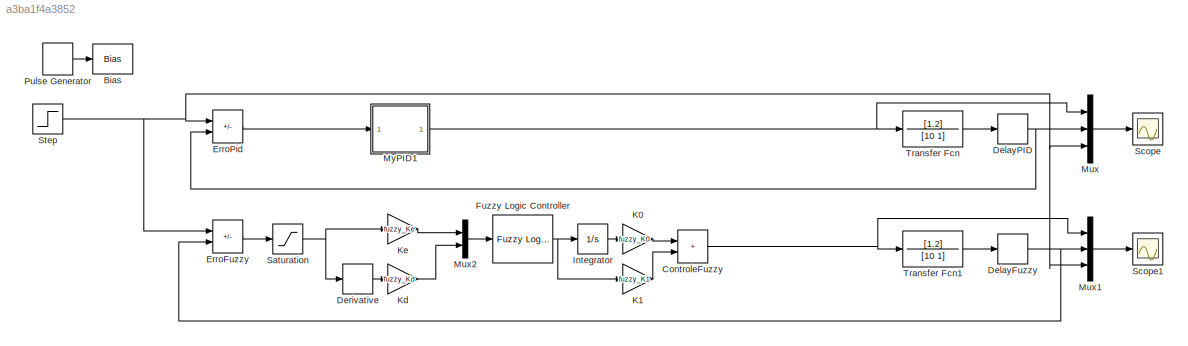
MODEL slx_a3ba1f4a3852
KIND model
CONFIG AbsTol = auto
CONFIG EnableMultiTasking = on
CONFIG FixedStep = auto
CONFIG MaxStep = auto
CONFIG MinStep = auto
CONFIG RelTol = 1e-3
CONFIG SampleTimeConstraint = Unconstrained
CONFIG Solver = ode23tb
CONFIG SolverName = ode23tb
CONFIG StartTime = 0.0
CONFIG StopTime = 100
BLOCK [Bias] Bias
  Bias = -1
  SaturateOnIntegerOverflow = off
BLOCK [Sum] ControleFuzzy
  IconShape = rectangular
  Ports = [2, 1]
BLOCK [TransportDelay] DelayFuzzy
  DelayTime = 2
  Ports = [1, 1]
BLOCK [TransportDelay] DelayPID
  DelayTime = 2
  Ports = [1, 1]
BLOCK [Derivative] Derivative
BLOCK [Sum] ErroFuzzy
  IconShape = rectangular
  Inputs = +-
  Ports = [2, 1]
BLOCK [Sum] ErroPid
  IconShape = rectangular
  Inputs = +-
  Ports = [2, 1]
BLOCK [Reference] Fuzzy Logic Controller  REF=fuzblock/Fuzzy Logic   (lib defined in mdl_858b3b3e7478)
Controller
  Ports = [1, 1]
  SourceBlock = fuzblock/Fuzzy Logic \nController
  SourceProductBaseCode = FL
  SourceType = Fuzzy Inference System
BLOCK [Integrator] Integrator
  Ports = [1, 1]
BLOCK [Gain] K0
  Gain = fuzzy_K0
BLOCK [Gain] K1
  Gain = fuzzy_K1
BLOCK [Gain] Kd
  Gain = fuzzy_Kd
BLOCK [Gain] Ke
  Gain = fuzzy_Ke
BLOCK [Mux] Mux
  DisplayOption = bar
  Inputs = 3
  Ports = [3, 1]
BLOCK [Mux] Mux1
  DisplayOption = bar
  Inputs = 3
  Ports = [3, 1]
BLOCK [Mux] Mux2
  DisplayOption = bar
  Inputs = 2
  Ports = [2, 1]
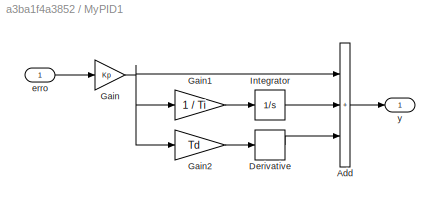
BLOCK [SubSystem] MyPID1
  Ports = [1, 1]
  RequestExecContextInheritance = off
BLOCK [Sum] MyPID1/Add
  IconShape = rectangular
  Inputs = +++
  Ports = [3, 1]
BLOCK [Derivative] MyPID1/Derivative
BLOCK [Gain] MyPID1/Gain
  Gain = Kp
BLOCK [Gain] MyPID1/Gain1
  Gain = 1 / Ti
BLOCK [Gain] MyPID1/Gain2
  Gain = Td
BLOCK [Integrator] MyPID1/Integrator
  Ports = [1, 1]
BLOCK [Inport] MyPID1/erro
BLOCK [Outport] MyPID1/y
BLOCK [DiscretePulseGenerator] Pulse Generator
  Amplitude = 2
  Period = Tcr
  Ports = [0, 1]
  PulseType = Time based
  PulseWidth = 50
BLOCK [Saturate] Saturation
  LowerLimit = -1
  UpperLimit = 1
BLOCK [Scope] Scope
  Floating = off
  NumInputPorts = 1
  Ports = [1]
  ScopeSpecificationString = Simulink.scopes.TimeScopeBlockCfg('CurrentConfiguration', extmgr.ConfigurationSet(extmgr.Configuration('Core','General UI',true),extmgr.Configuration('Core','Source UI',true),extmgr.Configuration('Sources','WiredSimulink',true,'DataLoggingSaveFormat','StructureWithTime','DataLoggingLimitDataPoints',true,'DataLoggingDecimation','1','DataLoggingDecimateData',true),extmgr.Configuration('Visuals','Tim...<+1701ch>
BLOCK [Scope] Scope1
  Floating = off
  NumInputPorts = 1
  Ports = [1]
  ScopeSpecificationString = Simulink.scopes.TimeScopeBlockCfg('CurrentConfiguration', extmgr.ConfigurationSet(extmgr.Configuration('Core','General UI',true),extmgr.Configuration('Core','Source UI',true),extmgr.Configuration('Sources','WiredSimulink',true,'DataLoggingVariableName','ScopeData1','DataLoggingSaveFormat','StructureWithTime','DataLoggingLimitDataPoints',true,'DataLoggingDecimation','1','DataLoggingDecimateData',tr...<+1730ch>
BLOCK [Step] Step
  SampleTime = 0
BLOCK [TransferFcn] Transfer Fcn
  Denominator = [10 1]
  Numerator = [1.2]
BLOCK [TransferFcn] Transfer Fcn1
  Denominator = [10 1]
  Numerator = [1.2]
NET ControleFuzzy:1 -> Mux1:1, Transfer Fcn1:1
NET DelayFuzzy:1 -> ErroFuzzy:2, Mux1:2
NET DelayPID:1 -> ErroPid:2, Mux:2
LINE Derivative:1 -> Kd:1
LINE ErroFuzzy:1 -> Saturation:1
LINE ErroPid:1 -> MyPID1:1
NET Fuzzy Logic Controller:1 -> Integrator:1, K1:1
LINE Integrator:1 -> K0:1
LINE K0:1 -> ControleFuzzy:1
LINE K1:1 -> ControleFuzzy:2
LINE Kd:1 -> Mux2:2
LINE Ke:1 -> Mux2:1
LINE Mux1:1 -> Scope1:1
LINE Mux2:1 -> Fuzzy Logic Controller:1
LINE Mux:1 -> Scope:1
LINE MyPID1/Add:1 -> MyPID1/y:1
LINE MyPID1/Derivative:1 -> MyPID1/Add:3
LINE MyPID1/Gain1:1 -> MyPID1/Integrator:1
LINE MyPID1/Gain2:1 -> MyPID1/Derivative:1
NET MyPID1/Gain:1 -> MyPID1/Add:1, MyPID1/Gain1:1, MyPID1/Gain2:1
LINE MyPID1/Integrator:1 -> MyPID1/Add:2
LINE MyPID1/erro:1 -> MyPID1/Gain:1
NET MyPID1:1 -> Mux:1, Transfer Fcn:1
LINE Pulse Generator:1 -> Bias:1
NET Saturation:1 -> Derivative:1, Ke:1
NET Step:1 -> ErroFuzzy:1, ErroPid:1, Mux1:3, Mux:3
LINE Transfer Fcn1:1 -> DelayFuzzy:1
LINE Transfer Fcn:1 -> DelayPID:1
note: NET lines group one-source signal fan-out (src -> all destinations, sorted); 1:1 wires keep LINE
